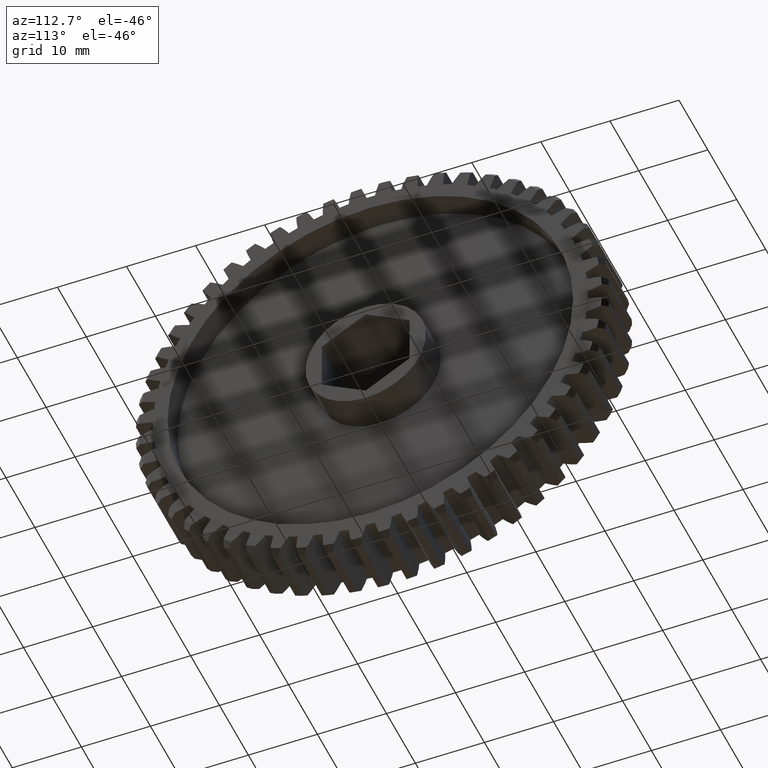
[diagram: clean part render]
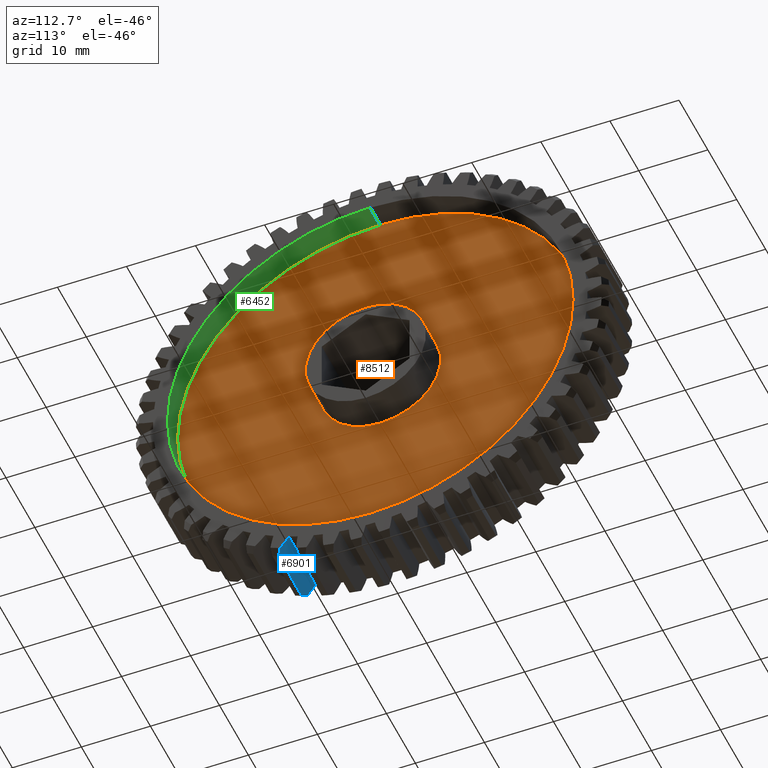
[diagram: same view with three faces highlighted in distinct colors, each labeled with its STEP entity id]
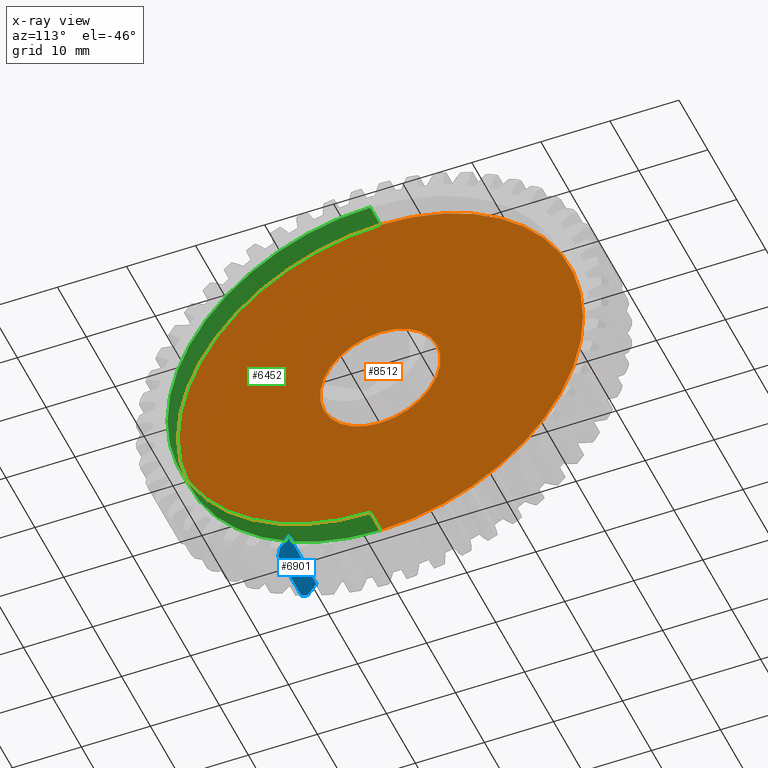
[diagram: x-ray of the same camera — body ghosted, the three highlighted faces saturated]
A machine part, auxiliary view with three faces highlighted in distinct colors.
The next image is the same camera in x-ray (body ghosted, the three faces saturated) — at least one of them is partly hidden behind the body in this view.
Their STEP definitions:

[orange] entity #8512 — the highlighted planar face has unit normal (1, 0, 0).
#454 = CARTESIAN_POINT ( 'NONE',  ( 0.2374999999999999889, 0.0000000000000000000, 0.0000000000000000000 ) ) ;
#593 = CIRCLE ( 'NONE', #1514, 0.3437500000000000000 ) ;
#990 = CIRCLE ( 'NONE', #11311, 1.156250000000000000 ) ;
#1357 = PLANE ( 'NONE',  #9117 ) ;
#1514 = AXIS2_PLACEMENT_3D ( 'NONE', #454, #5362, #4830 ) ;
#1902 = VERTEX_POINT ( 'NONE', #4076 ) ;
#1982 = AXIS2_PLACEMENT_3D ( 'NONE', #2505, #6138, #9812 ) ;
#2505 = CARTESIAN_POINT ( 'NONE',  ( 0.2374999999999999889, 0.0000000000000000000, 0.0000000000000000000 ) ) ;
#2702 = CARTESIAN_POINT ( 'NONE',  ( 0.2374999999999999889, 0.0000000000000000000, -1.156250000000000000 ) ) ;
#3032 = CARTESIAN_POINT ( 'NONE',  ( 0.2374999999999999889, 0.0000000000000000000, 0.3437500000000000000 ) ) ;
#3562 = ORIENTED_EDGE ( 'NONE', *, *, #7614, .F. ) ;
#3948 = ORIENTED_EDGE ( 'NONE', *, *, #9883, .F. ) ;
#4076 = CARTESIAN_POINT ( 'NONE',  ( 0.2374999999999999889, 4.209723372069026264E-17, -0.3437500000000000000 ) ) ;
#4096 = CARTESIAN_POINT ( 'NONE',  ( 0.2374999999999999889, 0.0000000000000000000, 0.0000000000000000000 ) ) ;
#4693 = DIRECTION ( 'NONE',  ( 1.000000000000000000, 0.0000000000000000000, 0.0000000000000000000 ) ) ;
#4758 = DIRECTION ( 'NONE',  ( 0.0000000000000000000, 0.0000000000000000000, -1.000000000000000000 ) ) ;
#4830 = DIRECTION ( 'NONE',  ( 0.0000000000000000000, 0.0000000000000000000, -1.000000000000000000 ) ) ;
#5362 = DIRECTION ( 'NONE',  ( 1.000000000000000000, 0.0000000000000000000, 0.0000000000000000000 ) ) ;
#5947 = DIRECTION ( 'NONE',  ( 1.000000000000000000, 0.0000000000000000000, 0.0000000000000000000 ) ) ;
#6138 = DIRECTION ( 'NONE',  ( 1.000000000000000000, 0.0000000000000000000, 0.0000000000000000000 ) ) ;
#6694 = EDGE_LOOP ( 'NONE', ( #3562, #3948 ) ) ;
#6809 = CARTESIAN_POINT ( 'NONE',  ( 0.2374999999999999889, 1.415997861514127123E-16, 1.156250000000000000 ) ) ;
#7122 = CIRCLE ( 'NONE', #1982, 0.3437500000000000000 ) ;
#7160 = VERTEX_POINT ( 'NONE', #2702 ) ;
#7428 = AXIS2_PLACEMENT_3D ( 'NONE', #11288, #4693, #4758 ) ;
#7446 = CIRCLE ( 'NONE', #7428, 1.156250000000000000 ) ;
#7614 = EDGE_CURVE ( 'NONE', #10238, #1902, #593, .T. ) ;
#7715 = ORIENTED_EDGE ( 'NONE', *, *, #11315, .T. ) ;
#7785 = EDGE_CURVE ( 'NONE', #7160, #9310, #7446, .T. ) ;
#8499 = CARTESIAN_POINT ( 'NONE',  ( 0.2374999999999999889, 0.0000000000000000000, 0.0000000000000000000 ) ) ;
#8512 = ADVANCED_FACE ( 'NONE', ( #8599, #10447 ), #1357, .T. ) ;
#8599 = FACE_BOUND ( 'NONE', #6694, .T. ) ;
#8708 = DIRECTION ( 'NONE',  ( 0.0000000000000000000, 0.0000000000000000000, -1.000000000000000000 ) ) ;
#9117 = AXIS2_PLACEMENT_3D ( 'NONE', #4096, #5947, #8708 ) ;
#9137 = DIRECTION ( 'NONE',  ( 1.000000000000000000, 0.0000000000000000000, 0.0000000000000000000 ) ) ;
#9310 = VERTEX_POINT ( 'NONE', #6809 ) ;
#9344 = EDGE_LOOP ( 'NONE', ( #11495, #7715 ) ) ;
#9812 = DIRECTION ( 'NONE',  ( 0.0000000000000000000, 0.0000000000000000000, -1.000000000000000000 ) ) ;
#9883 = EDGE_CURVE ( 'NONE', #1902, #10238, #7122, .T. ) ;
#10238 = VERTEX_POINT ( 'NONE', #3032 ) ;
#10447 = FACE_OUTER_BOUND ( 'NONE', #9344, .T. ) ;
#10982 = DIRECTION ( 'NONE',  ( 0.0000000000000000000, 0.0000000000000000000, -1.000000000000000000 ) ) ;
#11288 = CARTESIAN_POINT ( 'NONE',  ( 0.2374999999999999889, 0.0000000000000000000, 0.0000000000000000000 ) ) ;
#11311 = AXIS2_PLACEMENT_3D ( 'NONE', #8499, #9137, #10982 ) ;
#11315 = EDGE_CURVE ( 'NONE', #9310, #7160, #990, .T. ) ;
#11495 = ORIENTED_EDGE ( 'NONE', *, *, #7785, .T. ) ;

[blue] entity #6901 — the highlighted cylindrical surface (partial cylindrical patch) has radius 13.208 mm, axis along (-1, 0, 0).
#51 = VECTOR ( 'NONE', #10666, 39.37007874015748143 ) ;
#210 = CARTESIAN_POINT ( 'NONE',  ( 0.0000000000000000000, -0.4639473228763507096, -1.147779108363568223 ) ) ;
#1180 = CARTESIAN_POINT ( 'NONE',  ( 0.0000000000000000000, -0.5141693958917565865, -1.215742502476699238 ) ) ;
#1330 = CARTESIAN_POINT ( 'NONE',  ( 0.0000000000000000000, -0.5141693958917565865, -1.215742502476699238 ) ) ;
#1368 = CIRCLE ( 'NONE', #3860, 0.5199999999999999067 ) ;
#1732 = VERTEX_POINT ( 'NONE', #2889 ) ;
#1868 = CARTESIAN_POINT ( 'NONE',  ( 0.3450000000000000844, -0.5358553783711429430, -1.239096046911102089 ) ) ;
#2150 = VERTEX_POINT ( 'NONE', #1868 ) ;
#2446 = CARTESIAN_POINT ( 'NONE',  ( 0.3450000000000000844, -0.5358553783711429430, -1.239096046911102089 ) ) ;
#2555 = ORIENTED_EDGE ( 'NONE', *, *, #8428, .T. ) ;
#2742 = DIRECTION ( 'NONE',  ( 0.0000000000000000000, 1.076978535963796202E-14, 1.000000000000000000 ) ) ;
#2743 = ORIENTED_EDGE ( 'NONE', *, *, #6363, .T. ) ;
#2791 = CARTESIAN_POINT ( 'NONE',  ( 0.3750000000000000555, -0.9058815888390331361, -0.8737460728221847495 ) ) ;
#2889 = CARTESIAN_POINT ( 'NONE',  ( 0.3750000000000000555, -0.4639473228763507096, -1.147779108363568223 ) ) ;
#3143 = DIRECTION ( 'NONE',  ( -1.000000000000000000, 0.0000000000000000000, 0.0000000000000000000 ) ) ;
#3233 = B_SPLINE_CURVE_WITH_KNOTS ( 'NONE', 3,
 ( #10418, #6767, #4974, #1330 ),
 .UNSPECIFIED., .F., .F.,
 ( 4, 4 ),
 ( 3.590984966345648419E-18, 0.001111716499718279350 ),
 .UNSPECIFIED. ) ;
#3328 = CARTESIAN_POINT ( 'NONE',  ( 0.3750000000000000555, -0.5141693958917563645, -1.215742502476699238 ) ) ;
#3845 = FACE_OUTER_BOUND ( 'NONE', #8931, .T. ) ;
#3860 = AXIS2_PLACEMENT_3D ( 'NONE', #7767, #9128, #5246 ) ;
#4023 = ORIENTED_EDGE ( 'NONE', *, *, #5181, .T. ) ;
#4238 = B_SPLINE_CURVE_WITH_KNOTS ( 'NONE', 3,
 ( #3328, #6978, #10636, #2446 ),
 .UNSPECIFIED., .F., .F.,
 ( 4, 4 ),
 ( 2.453269466693397157E-18, 0.001111716499718290625 ),
 .UNSPECIFIED. ) ;
#4466 = LINE ( 'NONE', #6489, #51 ) ;
#4690 = CARTESIAN_POINT ( 'NONE',  ( 0.3750000000000000555, -0.5358553783711431651, -1.239096046911102089 ) ) ;
#4752 = AXIS2_PLACEMENT_3D ( 'NONE', #2791, #3143, #11638 ) ;
#4897 = ORIENTED_EDGE ( 'NONE', *, *, #6766, .T. ) ;
#4927 = EDGE_CURVE ( 'NONE', #7204, #6582, #10030, .T. ) ;
#4954 = ORIENTED_EDGE ( 'NONE', *, *, #9674, .T. ) ;
#4974 = CARTESIAN_POINT ( 'NONE',  ( 0.01005095659673848479, -0.5211278351159744915, -1.223712484767924380 ) ) ;
#5181 = EDGE_CURVE ( 'NONE', #2150, #7735, #7775, .T. ) ;
#5246 = DIRECTION ( 'NONE',  ( 0.0000000000000000000, 0.0000000000000000000, 1.000000000000000000 ) ) ;
#6247 = CARTESIAN_POINT ( 'NONE',  ( 0.3750000000000000555, -0.5141693958917563645, -1.215742502476699238 ) ) ;
#6363 = EDGE_CURVE ( 'NONE', #6582, #1732, #4466, .T. ) ;
#6437 = VECTOR ( 'NONE', #10357, 39.37007874015748143 ) ;
#6489 = CARTESIAN_POINT ( 'NONE',  ( 0.3750000000000000555, -0.4639473228763508761, -1.147779108363568223 ) ) ;
#6582 = VERTEX_POINT ( 'NONE', #210 ) ;
#6766 = EDGE_CURVE ( 'NONE', #1732, #7172, #1368, .T. ) ;
#6767 = CARTESIAN_POINT ( 'NONE',  ( 0.02005027318439913525, -0.5283547928937528670, -1.231499458934298907 ) ) ;
#6791 = CYLINDRICAL_SURFACE ( 'NONE', #4752, 0.5199999999999999067 ) ;
#6901 = ADVANCED_FACE ( 'NONE', ( #3845 ), #6791, .T. ) ;
#6978 = CARTESIAN_POINT ( 'NONE',  ( 0.3649490434032613972, -0.5211278351159744915, -1.223712484767924602 ) ) ;
#7172 = VERTEX_POINT ( 'NONE', #6247 ) ;
#7204 = VERTEX_POINT ( 'NONE', #1180 ) ;
#7735 = VERTEX_POINT ( 'NONE', #10786 ) ;
#7767 = CARTESIAN_POINT ( 'NONE',  ( 0.3750000000000000555, -0.9058815888390331361, -0.8737460728221847495 ) ) ;
#7775 = LINE ( 'NONE', #4690, #6437 ) ;
#7999 = CARTESIAN_POINT ( 'NONE',  ( 0.0000000000000000000, -0.9058815888390331361, -0.8737460728221847495 ) ) ;
#8428 = EDGE_CURVE ( 'NONE', #7172, #2150, #4238, .T. ) ;
#8534 = DIRECTION ( 'NONE',  ( 1.000000000000000000, -0.0000000000000000000, -0.0000000000000000000 ) ) ;
#8931 = EDGE_LOOP ( 'NONE', ( #4023, #4954, #11770, #2743, #4897, #2555 ) ) ;
#9128 = DIRECTION ( 'NONE',  ( -1.000000000000000000, 0.0000000000000000000, 0.0000000000000000000 ) ) ;
#9674 = EDGE_CURVE ( 'NONE', #7735, #7204, #3233, .T. ) ;
#10030 = CIRCLE ( 'NONE', #11270, 0.5199999999999999067 ) ;
#10357 = DIRECTION ( 'NONE',  ( -1.000000000000000000, 0.0000000000000000000, 0.0000000000000000000 ) ) ;
#10418 = CARTESIAN_POINT ( 'NONE',  ( 0.02999999999999967970, -0.5358553783711429430, -1.239096046911102089 ) ) ;
#10636 = CARTESIAN_POINT ( 'NONE',  ( 0.3549497268156008856, -0.5283547928937527560, -1.231499458934298907 ) ) ;
#10666 = DIRECTION ( 'NONE',  ( 1.000000000000000000, -0.0000000000000000000, -0.0000000000000000000 ) ) ;
#10786 = CARTESIAN_POINT ( 'NONE',  ( 0.02999999999999967970, -0.5358553783711429430, -1.239096046911102089 ) ) ;
#11270 = AXIS2_PLACEMENT_3D ( 'NONE', #7999, #8534, #2742 ) ;
#11638 = DIRECTION ( 'NONE',  ( 0.0000000000000000000, 0.0000000000000000000, 1.000000000000000000 ) ) ;
#11770 = ORIENTED_EDGE ( 'NONE', *, *, #4927, .T. ) ;

[green] entity #6452 — the highlighted cylindrical surface (partial cylindrical patch) has radius 29.3687 mm, axis along (1, -0, -0).
#33 = CARTESIAN_POINT ( 'NONE',  ( 0.2374999999999999889, 0.0000000000000000000, 0.0000000000000000000 ) ) ;
#351 = LINE ( 'NONE', #8868, #6307 ) ;
#553 = CIRCLE ( 'NONE', #8369, 1.156250000000000000 ) ;
#990 = CIRCLE ( 'NONE', #11311, 1.156250000000000000 ) ;
#1110 = DIRECTION ( 'NONE',  ( 1.000000000000000000, 0.0000000000000000000, 0.0000000000000000000 ) ) ;
#1224 = EDGE_CURVE ( 'NONE', #6359, #8974, #553, .T. ) ;
#1953 = ORIENTED_EDGE ( 'NONE', *, *, #9865, .T. ) ;
#2702 = CARTESIAN_POINT ( 'NONE',  ( 0.2374999999999999889, 0.0000000000000000000, -1.156250000000000000 ) ) ;
#2712 = AXIS2_PLACEMENT_3D ( 'NONE', #33, #8432, #7559 ) ;
#4019 = FACE_OUTER_BOUND ( 'NONE', #9791, .T. ) ;
#4078 = VECTOR ( 'NONE', #8846, 39.37007874015748143 ) ;
#5187 = CARTESIAN_POINT ( 'NONE',  ( 0.2374999999999999889, 1.415997861514127123E-16, 1.156250000000000000 ) ) ;
#5542 = ORIENTED_EDGE ( 'NONE', *, *, #7631, .F. ) ;
#5659 = DIRECTION ( 'NONE',  ( 0.0000000000000000000, 0.0000000000000000000, -1.000000000000000000 ) ) ;
#6185 = CARTESIAN_POINT ( 'NONE',  ( 0.3750000000000000555, 1.415997861514127123E-16, 1.156250000000000000 ) ) ;
#6307 = VECTOR ( 'NONE', #6648, 39.37007874015748143 ) ;
#6359 = VERTEX_POINT ( 'NONE', #6185 ) ;
#6452 = ADVANCED_FACE ( 'NONE', ( #4019 ), #7543, .F. ) ;
#6648 = DIRECTION ( 'NONE',  ( 1.000000000000000000, -0.0000000000000000000, -0.0000000000000000000 ) ) ;
#6809 = CARTESIAN_POINT ( 'NONE',  ( 0.2374999999999999889, 1.415997861514127123E-16, 1.156250000000000000 ) ) ;
#7023 = ORIENTED_EDGE ( 'NONE', *, *, #1224, .T. ) ;
#7160 = VERTEX_POINT ( 'NONE', #2702 ) ;
#7543 = CYLINDRICAL_SURFACE ( 'NONE', #2712, 1.156250000000000000 ) ;
#7559 = DIRECTION ( 'NONE',  ( 0.0000000000000000000, 0.0000000000000000000, -1.000000000000000000 ) ) ;
#7631 = EDGE_CURVE ( 'NONE', #7160, #8974, #351, .T. ) ;
#7863 = LINE ( 'NONE', #5187, #4078 ) ;
#8369 = AXIS2_PLACEMENT_3D ( 'NONE', #8409, #1110, #5659 ) ;
#8409 = CARTESIAN_POINT ( 'NONE',  ( 0.3750000000000000555, 0.0000000000000000000, 0.0000000000000000000 ) ) ;
#8432 = DIRECTION ( 'NONE',  ( 1.000000000000000000, -0.0000000000000000000, -0.0000000000000000000 ) ) ;
#8481 = CARTESIAN_POINT ( 'NONE',  ( 0.3750000000000000555, 0.0000000000000000000, -1.156250000000000000 ) ) ;
#8499 = CARTESIAN_POINT ( 'NONE',  ( 0.2374999999999999889, 0.0000000000000000000, 0.0000000000000000000 ) ) ;
#8846 = DIRECTION ( 'NONE',  ( 1.000000000000000000, -0.0000000000000000000, -0.0000000000000000000 ) ) ;
#8868 = CARTESIAN_POINT ( 'NONE',  ( 0.2374999999999999889, 0.0000000000000000000, -1.156250000000000000 ) ) ;
#8974 = VERTEX_POINT ( 'NONE', #8481 ) ;
#9137 = DIRECTION ( 'NONE',  ( 1.000000000000000000, 0.0000000000000000000, 0.0000000000000000000 ) ) ;
#9310 = VERTEX_POINT ( 'NONE', #6809 ) ;
#9791 = EDGE_LOOP ( 'NONE', ( #10577, #1953, #7023, #5542 ) ) ;
#9865 = EDGE_CURVE ( 'NONE', #9310, #6359, #7863, .T. ) ;
#10577 = ORIENTED_EDGE ( 'NONE', *, *, #11315, .F. ) ;
#10982 = DIRECTION ( 'NONE',  ( 0.0000000000000000000, 0.0000000000000000000, -1.000000000000000000 ) ) ;
#11311 = AXIS2_PLACEMENT_3D ( 'NONE', #8499, #9137, #10982 ) ;
#11315 = EDGE_CURVE ( 'NONE', #9310, #7160, #990, .T. ) ;